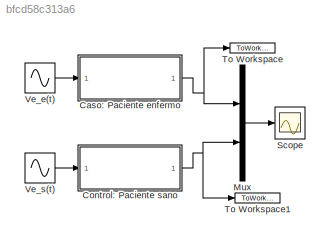
MODEL slx_bfcd58c313a6
KIND model
CONFIG AbsTol = auto
CONFIG EnableMultiTasking = off
CONFIG FixedStep = auto
CONFIG MaxStep = 1e-5
CONFIG MinStep = auto
CONFIG RelTol = 1e-6
CONFIG SampleTimeConstraint = Unconstrained
CONFIG SolverName = ode15s
CONFIG StartTime = 0.0
CONFIG StopTime = 10.0
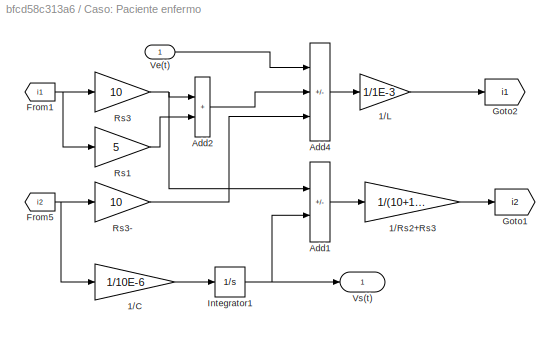
BLOCK [SubSystem] Caso: Paciente enfermo
BLOCK [Gain] Caso: Paciente enfermo/1//C
  Gain = 1/10E-6
BLOCK [Gain] Caso: Paciente enfermo/1//L
  Gain = 1/1E-3
BLOCK [Gain] Caso: Paciente enfermo/1//Rs2+Rs3
  Gain = 1/(10+10)
BLOCK [Sum] Caso: Paciente enfermo/Add1
  IconShape = rectangular
  Inputs = +-
BLOCK [Sum] Caso: Paciente enfermo/Add2
  IconShape = rectangular
BLOCK [Sum] Caso: Paciente enfermo/Add4
  IconShape = rectangular
  Inputs = +-+
BLOCK [From] Caso: Paciente enfermo/From1
  GotoTag = i1
BLOCK [From] Caso: Paciente enfermo/From5
  GotoTag = i2
BLOCK [Goto] Caso: Paciente enfermo/Goto1
  GotoTag = i2
BLOCK [Goto] Caso: Paciente enfermo/Goto2
  GotoTag = i1
BLOCK [Integrator] Caso: Paciente enfermo/Integrator1
BLOCK [Gain] Caso: Paciente enfermo/Rs1
  Gain = 5
BLOCK [Gain] Caso: Paciente enfermo/Rs3
  Gain = 10
BLOCK [Gain] Caso: Paciente enfermo/Rs3-
  Gain = 10
BLOCK [Inport] Caso: Paciente enfermo/Ve(t)
BLOCK [Outport] Caso: Paciente enfermo/Vs(t)
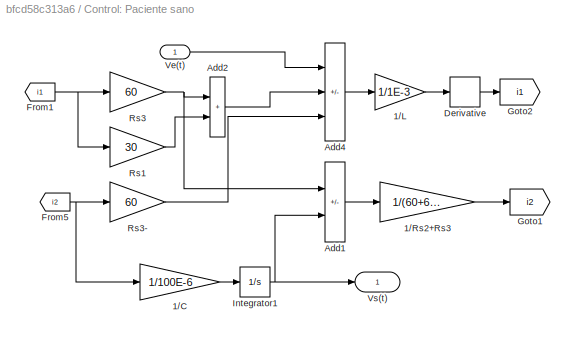
BLOCK [SubSystem] Control: Paciente sano
BLOCK [Gain] Control: Paciente sano/1//C
  Gain = 1/100E-6
BLOCK [Gain] Control: Paciente sano/1//L
  Gain = 1/1E-3
BLOCK [Gain] Control: Paciente sano/1//Rs2+Rs3
  Gain = 1/(60+60)
BLOCK [Sum] Control: Paciente sano/Add1
  IconShape = rectangular
  Inputs = +-
BLOCK [Sum] Control: Paciente sano/Add2
  IconShape = rectangular
BLOCK [Sum] Control: Paciente sano/Add4
  IconShape = rectangular
  Inputs = +-+
BLOCK [Derivative] Control: Paciente sano/Derivative
BLOCK [From] Control: Paciente sano/From1
  GotoTag = i1
BLOCK [From] Control: Paciente sano/From5
  GotoTag = i2
BLOCK [Goto] Control: Paciente sano/Goto1
  GotoTag = i2
BLOCK [Goto] Control: Paciente sano/Goto2
  GotoTag = i1
BLOCK [Integrator] Control: Paciente sano/Integrator1
BLOCK [Gain] Control: Paciente sano/Rs1
  Gain = 30
BLOCK [Gain] Control: Paciente sano/Rs3
  Gain = 60
BLOCK [Gain] Control: Paciente sano/Rs3-
  Gain = 60
BLOCK [Inport] Control: Paciente sano/Ve(t)
BLOCK [Outport] Control: Paciente sano/Vs(t)
BLOCK [Mux] Mux
  DisplayOption = bar
  Inputs = 2
BLOCK [Scope] Scope
  Floating = off
  NumInputPorts = 1
  ScopeSpecificationString = Simulink.scopes.TimeScopeBlockCfg('CurrentConfiguration', extmgr.ConfigurationSet(extmgr.Configuration('Core','General UI',true),extmgr.Configuration('Core','Source UI',true),extmgr.Configuration('Sources','WiredSimulink',true),extmgr.Configuration('Visuals','Time Domain',true,'SerializedDisplays',{struct('MinYLimReal','-1','MaxYLimReal','1','YLabelReal','','MinYLimMag','0.00000','MaxYLimMag','3.3...<+1681ch>
BLOCK [ToWorkspace] To Workspace
  FixptAsFi = on
  MaxDataPoints = inf
  SampleTime = -1
  VariableName = Ppx
BLOCK [ToWorkspace] To Workspace1
  FixptAsFi = on
  MaxDataPoints = inf
  SampleTime = -1
  VariableName = Ppy
BLOCK [Sin] Ve_e(t)
  Amplitude = 0.4
  Frequency = 2*pi
  SampleTime = 0
BLOCK [Sin] Ve_s(t)
  Frequency = 2*pi
  SampleTime = 0
LINE Caso: Paciente enfermo/1//C:1 -> Caso: Paciente enfermo/Integrator1:1
LINE Caso: Paciente enfermo/1//L:1 -> Caso: Paciente enfermo/Goto2:1
LINE Caso: Paciente enfermo/1//Rs2+Rs3:1 -> Caso: Paciente enfermo/Goto1:1
LINE Caso: Paciente enfermo/Add1:1 -> Caso: Paciente enfermo/1//Rs2+Rs3:1
LINE Caso: Paciente enfermo/Add2:1 -> Caso: Paciente enfermo/Add4:2
LINE Caso: Paciente enfermo/Add4:1 -> Caso: Paciente enfermo/1//L:1
NET Caso: Paciente enfermo/From1:1 -> Caso: Paciente enfermo/Rs1:1, Caso: Paciente enfermo/Rs3:1
NET Caso: Paciente enfermo/From5:1 -> Caso: Paciente enfermo/1//C:1, Caso: Paciente enfermo/Rs3-:1
NET Caso: Paciente enfermo/Integrator1:1 -> Caso: Paciente enfermo/Add1:2, Caso: Paciente enfermo/Vs(t):1
LINE Caso: Paciente enfermo/Rs1:1 -> Caso: Paciente enfermo/Add2:2
LINE Caso: Paciente enfermo/Rs3-:1 -> Caso: Paciente enfermo/Add4:3
NET Caso: Paciente enfermo/Rs3:1 -> Caso: Paciente enfermo/Add1:1, Caso: Paciente enfermo/Add2:1
LINE Caso: Paciente enfermo/Ve(t):1 -> Caso: Paciente enfermo/Add4:1
NET Caso: Paciente enfermo:1 -> Mux:1, To Workspace:1
LINE Control: Paciente sano/1//C:1 -> Control: Paciente sano/Integrator1:1
LINE Control: Paciente sano/1//L:1 -> Control: Paciente sano/Derivative:1
LINE Control: Paciente sano/1//Rs2+Rs3:1 -> Control: Paciente sano/Goto1:1
LINE Control: Paciente sano/Add1:1 -> Control: Paciente sano/1//Rs2+Rs3:1
LINE Control: Paciente sano/Add2:1 -> Control: Paciente sano/Add4:2
LINE Control: Paciente sano/Add4:1 -> Control: Paciente sano/1//L:1
LINE Control: Paciente sano/Derivative:1 -> Control: Paciente sano/Goto2:1
NET Control: Paciente sano/From1:1 -> Control: Paciente sano/Rs1:1, Control: Paciente sano/Rs3:1
NET Control: Paciente sano/From5:1 -> Control: Paciente sano/1//C:1, Control: Paciente sano/Rs3-:1
NET Control: Paciente sano/Integrator1:1 -> Control: Paciente sano/Add1:2, Control: Paciente sano/Vs(t):1
LINE Control: Paciente sano/Rs1:1 -> Control: Paciente sano/Add2:2
LINE Control: Paciente sano/Rs3-:1 -> Control: Paciente sano/Add4:3
NET Control: Paciente sano/Rs3:1 -> Control: Paciente sano/Add1:1, Control: Paciente sano/Add2:1
LINE Control: Paciente sano/Ve(t):1 -> Control: Paciente sano/Add4:1
NET Control: Paciente sano:1 -> Mux:2, To Workspace1:1
LINE Mux:1 -> Scope:1
LINE Ve_e(t):1 -> Caso: Paciente enfermo:1
LINE Ve_s(t):1 -> Control: Paciente sano:1
note: NET lines group one-source signal fan-out (src -> all destinations, sorted); 1:1 wires keep LINE
